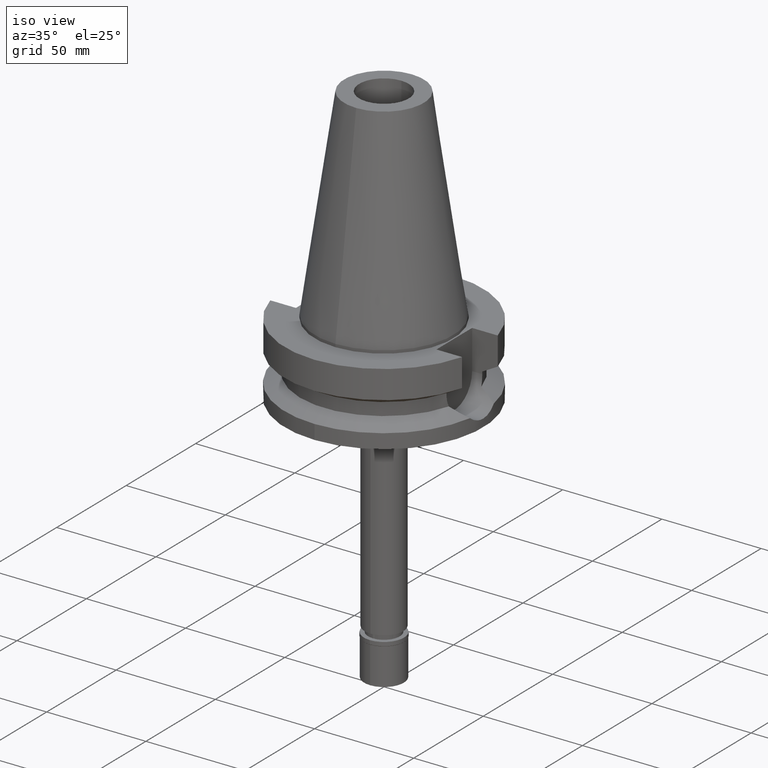
[diagram: clean part render]
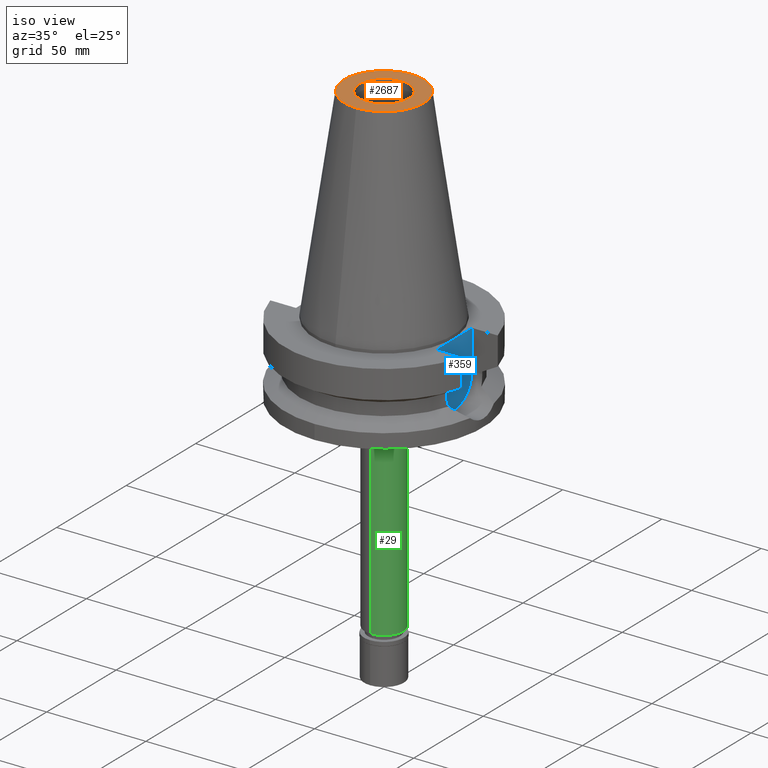
[diagram: same view with three faces highlighted in distinct colors, each labeled with its STEP entity id]
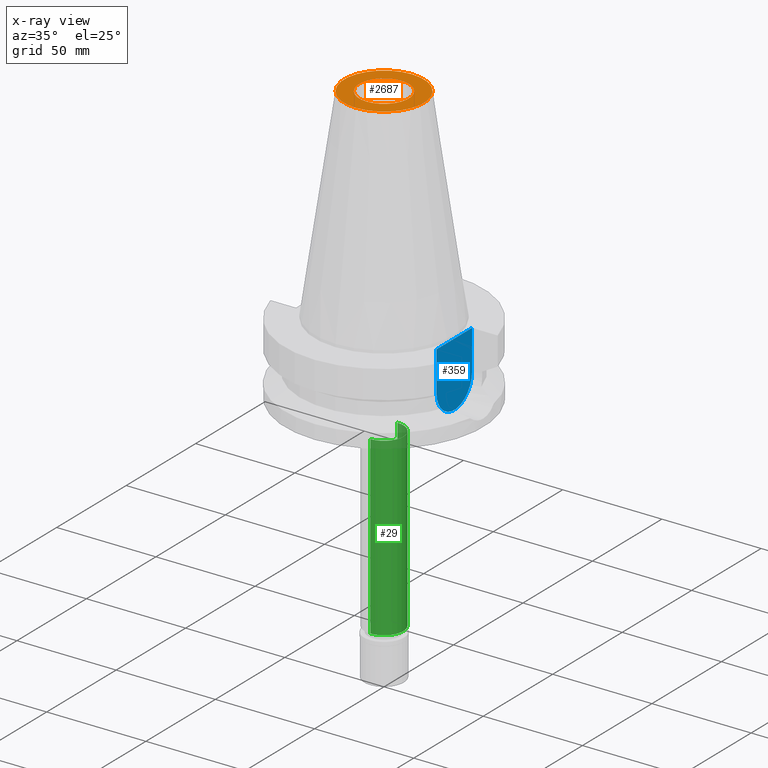
[diagram: x-ray of the same camera — body ghosted, the three highlighted faces saturated]
A machine part, iso view with three faces highlighted in distinct colors.
The next image is the same camera in x-ray (body ghosted, the three faces saturated) — at least one of them is partly hidden behind the body in this view.
Their STEP definitions:

[orange] entity #2687 — the highlighted planar face has unit normal (0, 0, -1).
#56 = EDGE_CURVE ( 'NONE', #1163, #2645, #2140, .T. ) ;
#189 = DIRECTION ( 'NONE',  ( 0.0000000000000000000, -1.000000000000000000, 0.0000000000000000000 ) ) ;
#213 = CARTESIAN_POINT ( 'NONE',  ( 0.0000000000000000000, -20.07942971896000017, 101.7999999999999972 ) ) ;
#341 = CARTESIAN_POINT ( 'NONE',  ( 0.0000000000000000000, 2.629806536488999751E-14, 101.7999999999999972 ) ) ;
#403 = ORIENTED_EDGE ( 'NONE', *, *, #1246, .F. ) ;
#560 = AXIS2_PLACEMENT_3D ( 'NONE', #1116, #1357, #3046 ) ;
#578 = CARTESIAN_POINT ( 'NONE',  ( 0.0000000000000000000, 2.471337240678999545E-14, 101.7999999999999972 ) ) ;
#585 = ORIENTED_EDGE ( 'NONE', *, *, #1721, .F. ) ;
#747 = DIRECTION ( 'NONE',  ( 0.0000000000000000000, 0.0000000000000000000, -1.000000000000000000 ) ) ;
#805 = DIRECTION ( 'NONE',  ( 0.0000000000000000000, 0.0000000000000000000, 1.000000000000000000 ) ) ;
#817 = FACE_BOUND ( 'NONE', #2344, .T. ) ;
#859 = EDGE_LOOP ( 'NONE', ( #2902, #2966 ) ) ;
#921 = CARTESIAN_POINT ( 'NONE',  ( 0.0000000000000000000, 2.629806536488999751E-14, 101.7999999999999972 ) ) ;
#955 = DIRECTION ( 'NONE',  ( 0.0000000000000000000, 0.0000000000000000000, 1.000000000000000000 ) ) ;
#1049 = CIRCLE ( 'NONE', #2837, 12.50000000000000000 ) ;
#1116 = CARTESIAN_POINT ( 'NONE',  ( 0.0000000000000000000, 1.847992019912999597E-14, 101.7999999999999972 ) ) ;
#1148 = CIRCLE ( 'NONE', #1457, 12.50000000000000000 ) ;
#1163 = VERTEX_POINT ( 'NONE', #2469 ) ;
#1220 = CARTESIAN_POINT ( 'NONE',  ( 0.0000000000000000000, 1.847992019912999597E-14, 101.7999999999999972 ) ) ;
#1246 = EDGE_CURVE ( 'NONE', #2127, #2651, #1148, .T. ) ;
#1348 = CIRCLE ( 'NONE', #2580, 20.07942971896000017 ) ;
#1357 = DIRECTION ( 'NONE',  ( 0.0000000000000000000, 0.0000000000000000000, -1.000000000000000000 ) ) ;
#1373 = FACE_OUTER_BOUND ( 'NONE', #859, .T. ) ;
#1457 = AXIS2_PLACEMENT_3D ( 'NONE', #341, #805, #2212 ) ;
#1479 = DIRECTION ( 'NONE',  ( 0.0000000000000000000, -1.000000000000000000, 0.0000000000000000000 ) ) ;
#1642 = AXIS2_PLACEMENT_3D ( 'NONE', #578, #1940, #3013 ) ;
#1721 = EDGE_CURVE ( 'NONE', #2651, #2127, #1049, .T. ) ;
#1940 = DIRECTION ( 'NONE',  ( 0.0000000000000000000, 0.0000000000000000000, -1.000000000000000000 ) ) ;
#2044 = PLANE ( 'NONE',  #1642 ) ;
#2127 = VERTEX_POINT ( 'NONE', #2900 ) ;
#2140 = CIRCLE ( 'NONE', #560, 20.07942971896000017 ) ;
#2212 = DIRECTION ( 'NONE',  ( 0.0000000000000000000, 1.000000000000000000, 0.0000000000000000000 ) ) ;
#2216 = EDGE_CURVE ( 'NONE', #2645, #1163, #1348, .T. ) ;
#2344 = EDGE_LOOP ( 'NONE', ( #403, #585 ) ) ;
#2469 = CARTESIAN_POINT ( 'NONE',  ( 0.0000000000000000000, 20.07942971896000017, 101.7999999999999972 ) ) ;
#2580 = AXIS2_PLACEMENT_3D ( 'NONE', #1220, #747, #189 ) ;
#2630 = CARTESIAN_POINT ( 'NONE',  ( 0.0000000000000000000, -12.50000000000000000, 101.7999999999999972 ) ) ;
#2645 = VERTEX_POINT ( 'NONE', #213 ) ;
#2651 = VERTEX_POINT ( 'NONE', #2630 ) ;
#2687 = ADVANCED_FACE ( 'NONE', ( #1373, #817 ), #2044, .F. ) ;
#2837 = AXIS2_PLACEMENT_3D ( 'NONE', #921, #955, #1479 ) ;
#2900 = CARTESIAN_POINT ( 'NONE',  ( 0.0000000000000000000, 12.50000000000000000, 101.7999999999999972 ) ) ;
#2902 = ORIENTED_EDGE ( 'NONE', *, *, #56, .F. ) ;
#2966 = ORIENTED_EDGE ( 'NONE', *, *, #2216, .F. ) ;
#3013 = DIRECTION ( 'NONE',  ( 0.0000000000000000000, -1.000000000000000000, 0.0000000000000000000 ) ) ;
#3046 = DIRECTION ( 'NONE',  ( 0.0000000000000000000, 1.000000000000000000, 0.0000000000000000000 ) ) ;

[blue] entity #359 — the highlighted planar face has unit normal (1, 0, 0).
#2 = FACE_OUTER_BOUND ( 'NONE', #1182, .T. ) ;
#17 = LINE ( 'NONE', #1432, #3144 ) ;
#33 = CARTESIAN_POINT ( 'NONE',  ( 35.39999999999999858, 12.84999999999999964, -21.14999999999999858 ) ) ;
#148 = CIRCLE ( 'NONE', #1879, 12.84999999999999964 ) ;
#217 = EDGE_CURVE ( 'NONE', #429, #2143, #148, .T. ) ;
#241 = CARTESIAN_POINT ( 'NONE',  ( 35.39999999999999858, 0.0000000000000000000, 0.0000000000000000000 ) ) ;
#301 = DIRECTION ( 'NONE',  ( 0.0000000000000000000, 0.0000000000000000000, -1.000000000000000000 ) ) ;
#359 = ADVANCED_FACE ( 'NONE', ( #2 ), #1510, .T. ) ;
#429 = VERTEX_POINT ( 'NONE', #33 ) ;
#440 = AXIS2_PLACEMENT_3D ( 'NONE', #241, #778, #2490 ) ;
#778 = DIRECTION ( 'NONE',  ( 1.000000000000000000, 0.0000000000000000000, 0.0000000000000000000 ) ) ;
#900 = CARTESIAN_POINT ( 'NONE',  ( 35.39999999999999858, -12.84999999999999964, -21.14999999999999858 ) ) ;
#929 = DIRECTION ( 'NONE',  ( 0.0000000000000000000, 0.0000000000000000000, 1.000000000000000000 ) ) ;
#958 = DIRECTION ( 'NONE',  ( 0.0000000000000000000, -1.000000000000000000, 0.0000000000000000000 ) ) ;
#1162 = CARTESIAN_POINT ( 'NONE',  ( 35.39999999999999858, 0.0000000000000000000, -21.14999999999999858 ) ) ;
#1182 = EDGE_LOOP ( 'NONE', ( #2843, #1712, #2602, #1451 ) ) ;
#1385 = VECTOR ( 'NONE', #929, 1000.000000000000000 ) ;
#1423 = LINE ( 'NONE', #900, #1385 ) ;
#1432 = CARTESIAN_POINT ( 'NONE',  ( 35.39999999999999858, 12.84999999999999964, -1.500000000000000000 ) ) ;
#1445 = EDGE_CURVE ( 'NONE', #2694, #429, #2507, .T. ) ;
#1451 = ORIENTED_EDGE ( 'NONE', *, *, #1797, .T. ) ;
#1510 = PLANE ( 'NONE',  #440 ) ;
#1552 = VERTEX_POINT ( 'NONE', #1619 ) ;
#1619 = CARTESIAN_POINT ( 'NONE',  ( 35.39999999999999858, -12.84999999999999964, -1.500000000000000000 ) ) ;
#1712 = ORIENTED_EDGE ( 'NONE', *, *, #217, .F. ) ;
#1797 = EDGE_CURVE ( 'NONE', #2694, #1552, #17, .T. ) ;
#1879 = AXIS2_PLACEMENT_3D ( 'NONE', #1162, #3145, #2356 ) ;
#1942 = CARTESIAN_POINT ( 'NONE',  ( 35.39999999999999858, -12.84999999999999964, -21.14999999999999858 ) ) ;
#2122 = VECTOR ( 'NONE', #301, 1000.000000000000000 ) ;
#2143 = VERTEX_POINT ( 'NONE', #1942 ) ;
#2237 = CARTESIAN_POINT ( 'NONE',  ( 35.39999999999999858, 12.84999999999999964, -1.500000000000000000 ) ) ;
#2356 = DIRECTION ( 'NONE',  ( 0.0000000000000000000, 1.000000000000000000, 0.0000000000000000000 ) ) ;
#2490 = DIRECTION ( 'NONE',  ( 0.0000000000000000000, 1.000000000000000000, 0.0000000000000000000 ) ) ;
#2507 = LINE ( 'NONE', #2996, #2122 ) ;
#2583 = EDGE_CURVE ( 'NONE', #2143, #1552, #1423, .T. ) ;
#2602 = ORIENTED_EDGE ( 'NONE', *, *, #1445, .F. ) ;
#2694 = VERTEX_POINT ( 'NONE', #2237 ) ;
#2843 = ORIENTED_EDGE ( 'NONE', *, *, #2583, .F. ) ;
#2996 = CARTESIAN_POINT ( 'NONE',  ( 35.39999999999999858, 12.84999999999999964, -1.500000000000000000 ) ) ;
#3144 = VECTOR ( 'NONE', #958, 1000.000000000000000 ) ;
#3145 = DIRECTION ( 'NONE',  ( -1.000000000000000000, 0.0000000000000000000, 0.0000000000000000000 ) ) ;

[green] entity #29 — the highlighted cylindrical surface (edge-blend (fillet) strip) has radius 9.75 mm, axis along (0, 0, -1).
#29 = ADVANCED_FACE ( 'NONE', ( #1324 ), #383, .T. ) ;
#35 = VERTEX_POINT ( 'NONE', #339 ) ;
#62 = VECTOR ( 'NONE', #1344, 1000.000000000000000 ) ;
#151 = DIRECTION ( 'NONE',  ( 0.0000000000000000000, 0.0000000000000000000, -1.000000000000000000 ) ) ;
#153 = AXIS2_PLACEMENT_3D ( 'NONE', #2082, #151, #1069 ) ;
#339 = CARTESIAN_POINT ( 'NONE',  ( 0.0000000000000000000, -9.750000000000000000, -53.00000000000000000 ) ) ;
#383 = CYLINDRICAL_SURFACE ( 'NONE', #153, 9.750000000000000000 ) ;
#385 = VECTOR ( 'NONE', #421, 1000.000000000000000 ) ;
#418 = ORIENTED_EDGE ( 'NONE', *, *, #882, .T. ) ;
#421 = DIRECTION ( 'NONE',  ( 0.0000000000000000000, 0.0000000000000000000, -1.000000000000000000 ) ) ;
#435 = VERTEX_POINT ( 'NONE', #2921 ) ;
#443 = CARTESIAN_POINT ( 'NONE',  ( 0.0000000000000000000, 0.0000000000000000000, -53.00000000000000000 ) ) ;
#511 = CARTESIAN_POINT ( 'NONE',  ( 0.0000000000000000000, -9.750000000000000000, -141.5999999999999943 ) ) ;
#539 = AXIS2_PLACEMENT_3D ( 'NONE', #881, #1219, #2440 ) ;
#881 = CARTESIAN_POINT ( 'NONE',  ( 0.0000000000000000000, 2.629806536488999751E-14, -141.5999999999999943 ) ) ;
#882 = EDGE_CURVE ( 'NONE', #35, #3134, #2773, .T. ) ;
#983 = EDGE_CURVE ( 'NONE', #3134, #3148, #1966, .T. ) ;
#1031 = ORIENTED_EDGE ( 'NONE', *, *, #983, .T. ) ;
#1069 = DIRECTION ( 'NONE',  ( 0.0000000000000000000, -1.000000000000000000, 0.0000000000000000000 ) ) ;
#1107 = CARTESIAN_POINT ( 'NONE',  ( 0.0000000000000000000, 9.750000000000000000, -53.00000000000000000 ) ) ;
#1219 = DIRECTION ( 'NONE',  ( 0.0000000000000000000, 0.0000000000000000000, 1.000000000000000000 ) ) ;
#1324 = FACE_OUTER_BOUND ( 'NONE', #1710, .T. ) ;
#1344 = DIRECTION ( 'NONE',  ( 0.0000000000000000000, 0.0000000000000000000, -1.000000000000000000 ) ) ;
#1710 = EDGE_LOOP ( 'NONE', ( #2750, #418, #1031, #1936 ) ) ;
#1936 = ORIENTED_EDGE ( 'NONE', *, *, #2531, .F. ) ;
#1966 = CIRCLE ( 'NONE', #539, 9.750000000000000000 ) ;
#2082 = CARTESIAN_POINT ( 'NONE',  ( 0.0000000000000000000, 2.629806536488999751E-14, 114.7399999999999949 ) ) ;
#2146 = DIRECTION ( 'NONE',  ( 0.0000000000000000000, 0.0000000000000000000, -1.000000000000000000 ) ) ;
#2199 = EDGE_CURVE ( 'NONE', #435, #35, #2330, .T. ) ;
#2330 = CIRCLE ( 'NONE', #2376, 9.750000000000000000 ) ;
#2376 = AXIS2_PLACEMENT_3D ( 'NONE', #443, #2146, #3151 ) ;
#2440 = DIRECTION ( 'NONE',  ( 0.0000000000000000000, -1.000000000000000000, 0.0000000000000000000 ) ) ;
#2473 = CARTESIAN_POINT ( 'NONE',  ( 0.0000000000000000000, 9.750000000000000000, -141.5999999999999943 ) ) ;
#2531 = EDGE_CURVE ( 'NONE', #435, #3148, #2801, .T. ) ;
#2610 = CARTESIAN_POINT ( 'NONE',  ( 0.0000000000000000000, -9.750000000000000000, -53.00000000000000000 ) ) ;
#2750 = ORIENTED_EDGE ( 'NONE', *, *, #2199, .T. ) ;
#2773 = LINE ( 'NONE', #2610, #385 ) ;
#2801 = LINE ( 'NONE', #1107, #62 ) ;
#2921 = CARTESIAN_POINT ( 'NONE',  ( 0.0000000000000000000, 9.750000000000000000, -53.00000000000000000 ) ) ;
#3134 = VERTEX_POINT ( 'NONE', #511 ) ;
#3148 = VERTEX_POINT ( 'NONE', #2473 ) ;
#3151 = DIRECTION ( 'NONE',  ( 0.0000000000000000000, 1.000000000000000000, 0.0000000000000000000 ) ) ;